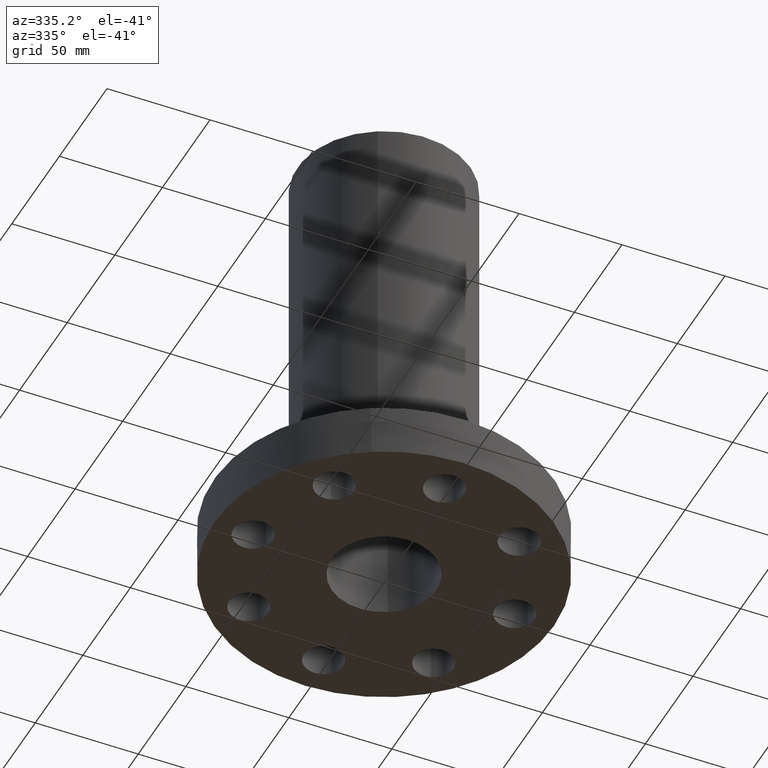
[diagram: clean part render]
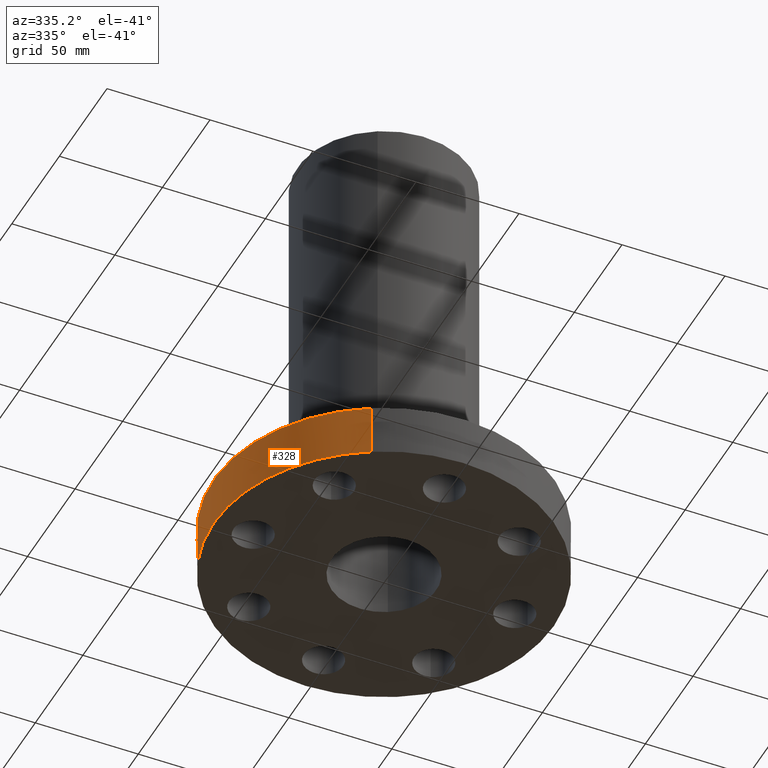
[diagram: same view with one face highlighted and labeled with its STEP entity id]
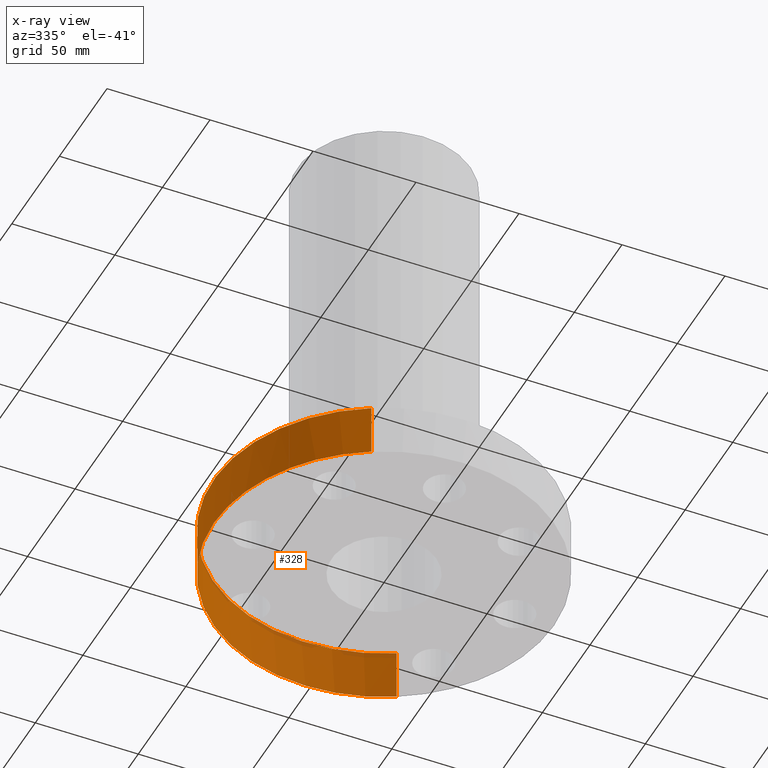
[diagram: x-ray of the same camera — body ghosted, the highlighted face saturated]
A machine part, auxiliary view. The second image highlights one B-rep face of the part: STEP entity #328.
The next image is the same camera in x-ray: the body ghosted, the highlighted face saturated — about 4% of this face is hidden behind the body in this view.
In plain terms, the highlighted cylindrical surface (partial cylindrical patch) has radius 82.55 mm, axis along (0, 0, -1).
Its self-contained STEP definition (entity closure, byte-faithful):
#108=AXIS2_PLACEMENT_3D('Circle Axis2P3D',#106,#107,$) ;
#285=AXIS2_PLACEMENT_3D('Cylinder Axis2P3D',#282,#283,#284) ;
#289=AXIS2_PLACEMENT_3D('Circle Axis2P3D',#287,#288,$) ;
#298=AXIS2_PLACEMENT_3D('Circle Axis2P3D',#296,#297,$) ;
#305=AXIS2_PLACEMENT_3D('Circle Axis2P3D',#303,#304,$) ;
#101=CARTESIAN_POINT('Vertex',(1.55813300047,2.85214332616,1.)) ;
#103=CARTESIAN_POINT('Vertex',(-1.55813300047,-2.85214332616,1.)) ;
#106=CARTESIAN_POINT('Axis2P3D Location',(0.,0.,1.)) ;
#282=CARTESIAN_POINT('Axis2P3D Location',(0.,0.,4.25000000002)) ;
#287=CARTESIAN_POINT('Axis2P3D Location',(0.,0.,5.59482469102E-016)) ;
#291=CARTESIAN_POINT('Vertex',(-5.22639861147E-016,3.25000000001,0.)) ;
#293=CARTESIAN_POINT('Vertex',(1.55813300047,2.85214332616,0.)) ;
#296=CARTESIAN_POINT('Axis2P3D Location',(0.,0.,5.59482469102E-016)) ;
#300=CARTESIAN_POINT('Vertex',(-3.25000000001,-3.98010209724E-016,0.)) ;
#303=CARTESIAN_POINT('Axis2P3D Location',(0.,0.,5.59482469102E-016)) ;
#307=CARTESIAN_POINT('Vertex',(-1.55813300047,-2.85214332616,0.)) ;
#310=CARTESIAN_POINT('Line Origine',(-1.55813300047,-2.85214332616,0.500000000002)) ;
#315=CARTESIAN_POINT('Line Origine',(1.55813300047,2.85214332616,0.500000000002)) ;
#107=DIRECTION('Axis2P3D Direction',(0.,0.,-0.0393700787402)) ;
#283=DIRECTION('Axis2P3D Direction',(0.,0.,-0.0393700787402)) ;
#284=DIRECTION('Axis2P3D XDirection',(0.0188750212049,0.0345504945626,0.)) ;
#288=DIRECTION('Axis2P3D Direction',(0.,0.,-0.0393700787402)) ;
#297=DIRECTION('Axis2P3D Direction',(0.,0.,-0.0393700787402)) ;
#304=DIRECTION('Axis2P3D Direction',(0.,0.,-0.0393700787402)) ;
#311=DIRECTION('Vector Direction',(0.,0.,-0.0393700787402)) ;
#316=DIRECTION('Vector Direction',(0.,0.,-0.0393700787402)) ;
#312=VECTOR('Line Direction',#311,0.0393700787402) ;
#317=VECTOR('Line Direction',#316,0.0393700787402) ;
#321=ORIENTED_EDGE('',*,*,#295,.F.) ;
#322=ORIENTED_EDGE('',*,*,#302,.F.) ;
#323=ORIENTED_EDGE('',*,*,#309,.F.) ;
#324=ORIENTED_EDGE('',*,*,#314,.T.) ;
#325=ORIENTED_EDGE('',*,*,#110,.T.) ;
#326=ORIENTED_EDGE('',*,*,#319,.F.) ;
#328=ADVANCED_FACE('PartBody',(#327),#286,.T.) ;
#109=CIRCLE('generated circle',#108,3.25000000001) ;
#290=CIRCLE('generated circle',#289,3.25000000001) ;
#299=CIRCLE('generated circle',#298,3.25000000001) ;
#306=CIRCLE('generated circle',#305,3.25000000001) ;
#286=CYLINDRICAL_SURFACE('generated cylinder',#285,3.25000000001) ;
#110=EDGE_CURVE('',#104,#102,#109,.T.) ;
#295=EDGE_CURVE('',#292,#294,#290,.T.) ;
#302=EDGE_CURVE('',#301,#292,#299,.T.) ;
#309=EDGE_CURVE('',#308,#301,#306,.T.) ;
#314=EDGE_CURVE('',#308,#104,#313,.F.) ;
#319=EDGE_CURVE('',#294,#102,#318,.F.) ;
#320=EDGE_LOOP('',(#321,#322,#323,#324,#325,#326)) ;
#327=FACE_OUTER_BOUND('',#320,.T.) ;
#313=LINE('Line',#310,#312) ;
#318=LINE('Line',#315,#317) ;
#102=VERTEX_POINT('',#101) ;
#104=VERTEX_POINT('',#103) ;
#292=VERTEX_POINT('',#291) ;
#294=VERTEX_POINT('',#293) ;
#301=VERTEX_POINT('',#300) ;
#308=VERTEX_POINT('',#307) ;